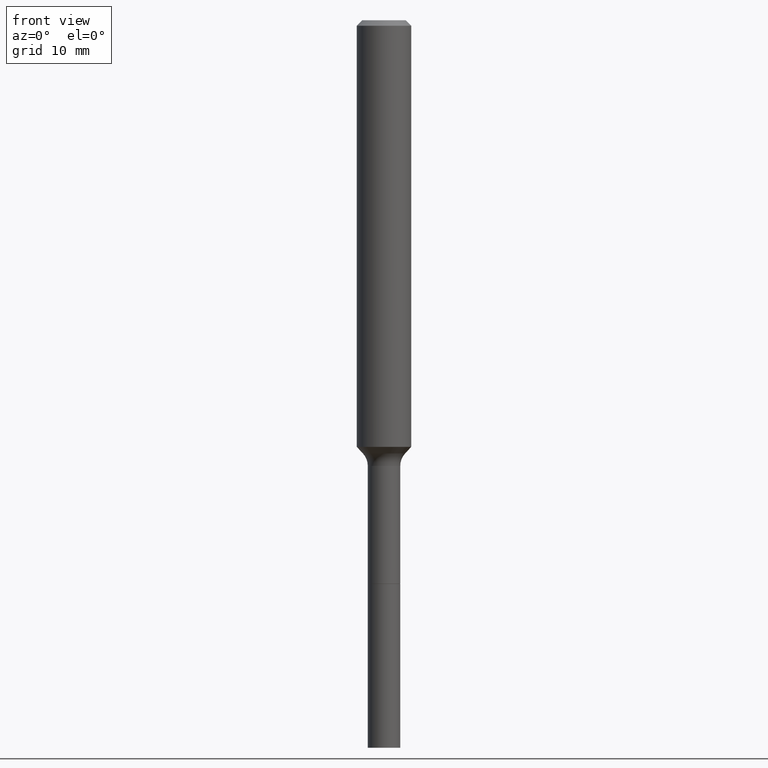
[diagram: clean part render]
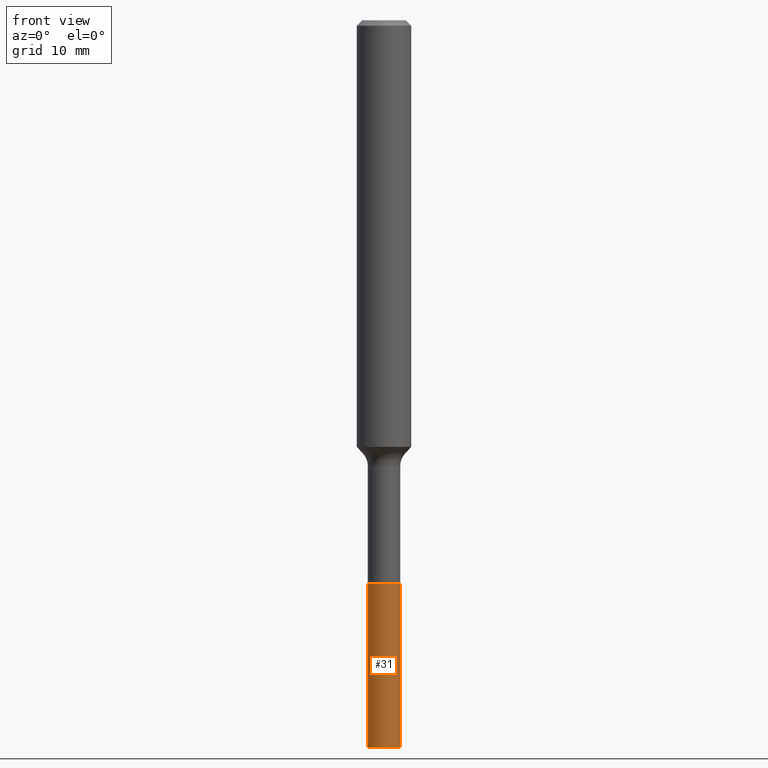
[diagram: same view with one face highlighted and labeled with its STEP entity id]
A machine part, front view. The second image highlights one B-rep face of the part: STEP entity #31.
In plain terms, the highlighted cylindrical surface (edge-blend (fillet) strip) has radius 1.7856 mm, axis along (-0, 0, 1).
Its self-contained STEP definition (entity closure, byte-faithful):
#3 = ORIENTED_EDGE ( 'NONE', *, *, #182, .F. ) ;
#13 = CARTESIAN_POINT ( 'NONE',  ( -0.07030000000000000138, -9.259527946961124365E-15, -2.440600000000000325 ) ) ;
#22 = ORIENTED_EDGE ( 'NONE', *, *, #254, .F. ) ;
#30 = VECTOR ( 'NONE', #389, 39.37007874015748143 ) ;
#31 = ADVANCED_FACE ( 'NONE', ( #334 ), #279, .T. ) ;
#42 = ORIENTED_EDGE ( 'NONE', *, *, #102, .T. ) ;
#53 = VERTEX_POINT ( 'NONE', #13 ) ;
#71 = CARTESIAN_POINT ( 'NONE',  ( 0.07030000000000000138, -9.012211631821926589E-15, -2.440600000000000325 ) ) ;
#82 = AXIS2_PLACEMENT_3D ( 'NONE', #502, #315, #98 ) ;
#87 = DIRECTION ( 'NONE',  ( -2.445468806185136597E-29, 3.491481338843145583E-15, 1.000000000000000000 ) ) ;
#98 = DIRECTION ( 'NONE',  ( 1.000000000000000000, -6.982962677686279332E-15, 0.000000000000000000 ) ) ;
#102 = EDGE_CURVE ( 'NONE', #302, #477, #412, .T. ) ;
#112 = CARTESIAN_POINT ( 'NONE',  ( 5.968411168375444927E-29, -8.521309355580580852E-15, -2.440600000000000325 ) ) ;
#125 = EDGE_CURVE ( 'NONE', #477, #297, #319, .T. ) ;
#126 = EDGE_LOOP ( 'NONE', ( #3, #42, #177, #22 ) ) ;
#177 = ORIENTED_EDGE ( 'NONE', *, *, #125, .T. ) ;
#180 = CARTESIAN_POINT ( 'NONE',  ( 7.702248551960706711E-29, -1.099676962482037231E-14, -3.149600000000000399 ) ) ;
#182 = EDGE_CURVE ( 'NONE', #302, #53, #381, .T. ) ;
#193 = AXIS2_PLACEMENT_3D ( 'NONE', #180, #87, #434 ) ;
#235 = CARTESIAN_POINT ( 'NONE',  ( 0.07030000000000009852, -9.012211631821926589E-15, -2.440600000000000325 ) ) ;
#254 = EDGE_CURVE ( 'NONE', #53, #297, #312, .T. ) ;
#261 = CARTESIAN_POINT ( 'NONE',  ( -0.07030000000000009852, -8.021797812341230215E-15, -2.440600000000000325 ) ) ;
#277 = DIRECTION ( 'NONE',  ( -2.445468806185136597E-29, 3.491481338843145583E-15, 1.000000000000000000 ) ) ;
#279 = CYLINDRICAL_SURFACE ( 'NONE', #466, 0.07030000000000009852 ) ;
#297 = VERTEX_POINT ( 'NONE', #71 ) ;
#302 = VERTEX_POINT ( 'NONE', #505 ) ;
#306 = DIRECTION ( 'NONE',  ( -2.445468806185136877E-29, 3.491481338843145188E-15, 1.000000000000000000 ) ) ;
#312 = CIRCLE ( 'NONE', #82, 0.07030000000000000138 ) ;
#315 = DIRECTION ( 'NONE',  ( -2.445468806185136597E-29, 3.491481338843145583E-15, 1.000000000000000000 ) ) ;
#319 = LINE ( 'NONE', #235, #30 ) ;
#334 = FACE_OUTER_BOUND ( 'NONE', #126, .T. ) ;
#381 = LINE ( 'NONE', #261, #417 ) ;
#389 = DIRECTION ( 'NONE',  ( -2.445468806185136877E-29, 3.491481338843145188E-15, 1.000000000000000000 ) ) ;
#412 = CIRCLE ( 'NONE', #193, 0.07030000000000019567 ) ;
#417 = VECTOR ( 'NONE', #306, 39.37007874015748143 ) ;
#431 = DIRECTION ( 'NONE',  ( 1.000000000000000000, -6.982962677686269866E-15, 0.000000000000000000 ) ) ;
#434 = DIRECTION ( 'NONE',  ( 1.000000000000000000, -6.982962677686259611E-15, 0.000000000000000000 ) ) ;
#466 = AXIS2_PLACEMENT_3D ( 'NONE', #112, #277, #431 ) ;
#477 = VERTEX_POINT ( 'NONE', #485 ) ;
#485 = CARTESIAN_POINT ( 'NONE',  ( 0.07030000000000019567, -1.148767190106171805E-14, -3.149600000000000399 ) ) ;
#502 = CARTESIAN_POINT ( 'NONE',  ( 5.968411168375444927E-29, -8.521309355580580852E-15, -2.440600000000000325 ) ) ;
#505 = CARTESIAN_POINT ( 'NONE',  ( -0.07030000000000019567, -9.259527946961122788E-15, -3.149600000000000399 ) ) ;